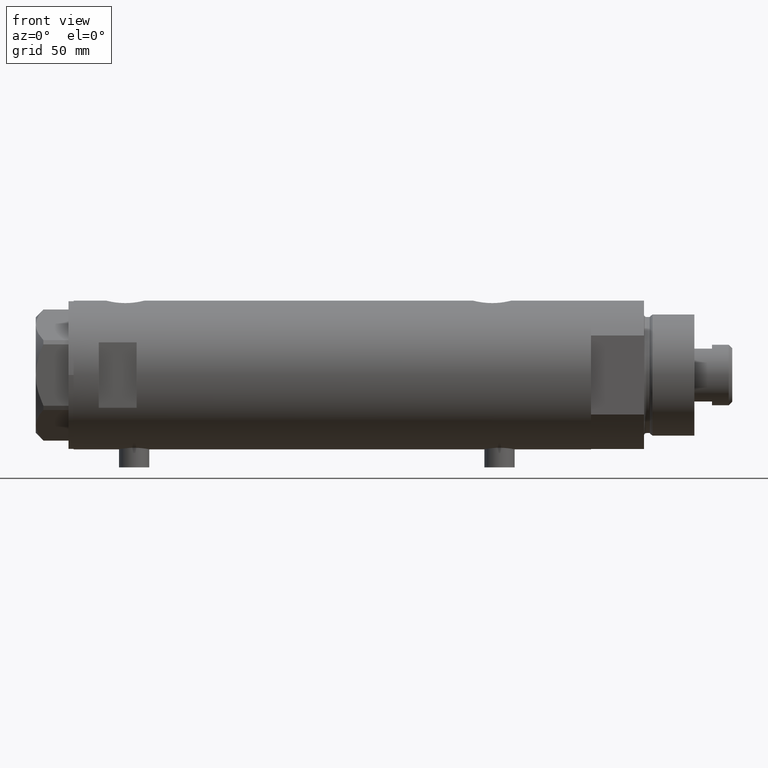
[diagram: clean part render]
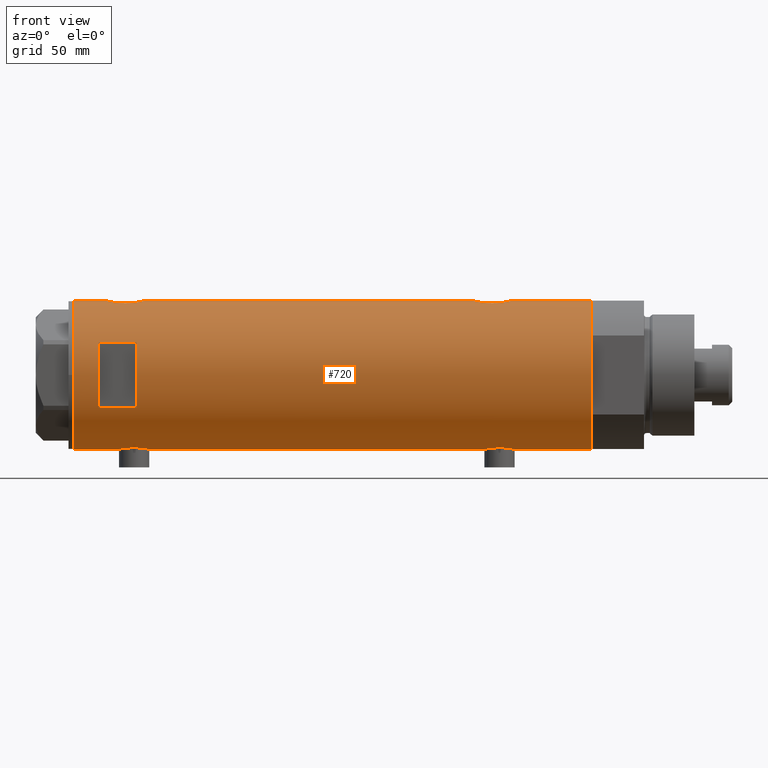
[diagram: same view with one face highlighted and labeled with its STEP entity id]
A machine part, front view. The second image highlights one B-rep face of the part: STEP entity #720.
In plain terms, the highlighted cylindrical surface (partial cylindrical patch) has radius 29.5 mm, axis along (-1, -0, 0).
Its self-contained STEP definition (entity closure, byte-faithful):
#6 = CARTESIAN_POINT ( 'NONE',  ( -29.38738983524999782, -2.582042051636495028, 72.90464828404618913 ) ) ;
#36 = CARTESIAN_POINT ( 'NONE',  ( -28.91427970886710597, -5.849862889315915915, 76.39006866871152113 ) ) ;
#82 = CARTESIAN_POINT ( 'NONE',  ( 28.77541267587656648, -6.504036106227646385, 85.86628550135911553 ) ) ;
#96 = CARTESIAN_POINT ( 'NONE',  ( 0.000000000000000000, 0.000000000000000000, -102.5999999999999943 ) ) ;
#103 = VECTOR ( 'NONE', #3602, 1000.000000000000000 ) ;
#111 = ORIENTED_EDGE ( 'NONE', *, *, #1349, .F. ) ;
#129 = VERTEX_POINT ( 'NONE', #2042 ) ;
#132 = CARTESIAN_POINT ( 'NONE',  ( 29.14531914445117877, -4.579221598645971447, 88.05990232992807876 ) ) ;
#144 = CARTESIAN_POINT ( 'NONE',  ( -29.45797511864982710, -1.625450914296657112, -72.34905127530043956 ) ) ;
#157 = CARTESIAN_POINT ( 'NONE',  ( 28.62986945670066774, -7.114680680403743018, 84.52393776006688597 ) ) ;
#169 = CARTESIAN_POINT ( 'NONE',  ( -29.12311479234994849, -4.702282052053745609, -62.17776471113518966 ) ) ;
#175 = VECTOR ( 'NONE', #3914, 1000.000000000000000 ) ;
#188 = CARTESIAN_POINT ( 'NONE',  ( 28.59279484545185923, -7.260293545345786193, -65.34406557984468122 ) ) ;
#208 = CARTESIAN_POINT ( 'NONE',  ( 28.95592074821772854, -5.641779806288306887, 77.15226504197966051 ) ) ;
#240 = EDGE_CURVE ( 'NONE', #609, #590, #2305, .T. ) ;
#242 = CARTESIAN_POINT ( 'NONE',  ( -29.33479068874800078, -3.136645782783869851, -60.87844745385528711 ) ) ;
#289 = CARTESIAN_POINT ( 'NONE',  ( -28.89828397447510966, -5.929977241120605314, 80.61611952241997869 ) ) ;
#298 = DIRECTION ( 'NONE',  ( 0.000000000000000000, 0.000000000000000000, 1.000000000000000000 ) ) ;
#312 = CARTESIAN_POINT ( 'NONE',  ( -29.21108587560690495, -4.128853169727745964, 73.89032723090410570 ) ) ;
#337 = CARTESIAN_POINT ( 'NONE',  ( -28.96147498926092112, -5.613273026676368183, 75.82107301657420351 ) ) ;
#364 = EDGE_CURVE ( 'NONE', #2247, #983, #951, .T. ) ;
#413 = CARTESIAN_POINT ( 'NONE',  ( -29.50000000000000355, -1.590035304987910071E-15, -60.04999999999999005 ) ) ;
#426 = CARTESIAN_POINT ( 'NONE',  ( 28.89374408016310269, -5.952042782108800445, 86.66984537025962254 ) ) ;
#435 = CARTESIAN_POINT ( 'NONE',  ( -29.50000000000000355, 3.612708057484692393E-15, -102.5999999999999943 ) ) ;
#470 = CARTESIAN_POINT ( 'NONE',  ( 28.53399451186754732, -7.487442594623194836, 82.59897485501112158 ) ) ;
#478 = FACE_OUTER_BOUND ( 'NONE', #3852, .T. ) ;
#481 = CARTESIAN_POINT ( 'NONE',  ( -29.25427426731712899, -3.815048240656443657, -71.26740768153337058 ) ) ;
#492 = LINE ( 'NONE', #2229, #103 ) ;
#493 = CARTESIAN_POINT ( 'NONE',  ( 29.31438578683261298, -3.335040812377227049, -70.13547276843773659 ) ) ;
#503 = CARTESIAN_POINT ( 'NONE',  ( -28.83028160285196506, -6.250189016175740520, -65.89032996785323348 ) ) ;
#516 = CARTESIAN_POINT ( 'NONE',  ( 28.62986945670067129, -7.114680680403742130, -60.97606223993307140 ) ) ;
#528 = LINE ( 'NONE', #1924, #4283 ) ;
#539 = DIRECTION ( 'NONE',  ( 0.000000000000000000, 0.000000000000000000, 1.000000000000000000 ) ) ;
#548 = CARTESIAN_POINT ( 'NONE',  ( 28.72151714661535138, -6.735173278284154463, -60.06359529429123256 ) ) ;
#558 = CARTESIAN_POINT ( 'NONE',  ( -28.83909499632369133, -6.209928350489664517, -65.48382218917039665 ) ) ;
#578 = CARTESIAN_POINT ( 'NONE',  ( -29.43130053621386821, -2.021711243143699654, -60.38244954039819845 ) ) ;
#590 = VERTEX_POINT ( 'NONE', #3547 ) ;
#601 = VECTOR ( 'NONE', #2892, 1000.000000000000000 ) ;
#609 = VERTEX_POINT ( 'NONE', #1884 ) ;
#631 = CARTESIAN_POINT ( 'NONE',  ( 29.05028789344173035, -5.134328181356801579, 76.62753542393731720 ) ) ;
#649 = CARTESIAN_POINT ( 'NONE',  ( -29.50000000000000711, -0.4084468586314294880, 72.34999999999999432 ) ) ;
#669 = EDGE_CURVE ( 'NONE', #2247, #3817, #3317, .T. ) ;
#671 = CARTESIAN_POINT ( 'NONE',  ( -29.43333839972900989, -2.017691896334575130, 72.67064010952158526 ) ) ;
#679 = ORIENTED_EDGE ( 'NONE', *, *, #3022, .F. ) ;
#695 = CARTESIAN_POINT ( 'NONE',  ( -29.12379578281188230, -4.705261494361423935, 74.46612042279726040 ) ) ;
#704 = DIRECTION ( 'NONE',  ( 0.000000000000000000, 0.000000000000000000, 1.000000000000000000 ) ) ;
#720 = ADVANCED_FACE ( 'NONE', ( #478, #2215 ), #3934, .T. ) ;
#742 = AXIS2_PLACEMENT_3D ( 'NONE', #2222, #3596, #1557 ) ;
#754 = CARTESIAN_POINT ( 'NONE',  ( -29.43333839972901345, -2.017691896334584012, -72.22935989047843464 ) ) ;
#765 = CARTESIAN_POINT ( 'NONE',  ( 29.48775985681159284, -0.9798361908152548594, 89.55230443881325186 ) ) ;
#790 = CARTESIAN_POINT ( 'NONE',  ( 29.50000000000000355, -2.245054425791785664E-15, 74.59999999999996589 ) ) ;
#797 = CARTESIAN_POINT ( 'NONE',  ( -29.49152014567324542, -0.8152473631539814969, -72.51035294833330624 ) ) ;
#824 = CARTESIAN_POINT ( 'NONE',  ( -29.50000000000000711, -0.4084468586314322081, -72.54999999999999716 ) ) ;
#825 = LINE ( 'NONE', #1527, #601 ) ;
#839 = CARTESIAN_POINT ( 'NONE',  ( 29.17410189149616428, -4.377709617224027738, -69.49475827476021550 ) ) ;
#848 = DIRECTION ( 'NONE',  ( 1.000000000000000000, 0.000000000000000000, 0.000000000000000000 ) ) ;
#850 = CARTESIAN_POINT ( 'NONE',  ( -28.99856997507318823, -5.420860550814443179, -69.43723012145801476 ) ) ;
#865 = CARTESIAN_POINT ( 'NONE',  ( 28.98816846638395717, -5.474212100855879726, -58.26747840116692601 ) ) ;
#867 = DIRECTION ( 'NONE',  ( 1.000000000000000000, 0.000000000000000000, 0.000000000000000000 ) ) ;
#871 = CARTESIAN_POINT ( 'NONE',  ( -29.46613381094001127, -1.427468570127966574, 84.68827540540398502 ) ) ;
#872 = CARTESIAN_POINT ( 'NONE',  ( -29.21016169868140722, -4.135295259288792380, -61.59609911913490521 ) ) ;
#913 = CARTESIAN_POINT ( 'NONE',  ( 28.95592074821772854, -5.641779806288295340, -68.34773495802029686 ) ) ;
#923 = CARTESIAN_POINT ( 'NONE',  ( -29.37136442049237672, -2.777615426151009537, -60.68634887377884013 ) ) ;
#935 = EDGE_CURVE ( 'NONE', #2394, #3659, #1830, .T. ) ;
#939 = CARTESIAN_POINT ( 'NONE',  ( 0.000000000000000000, 0.000000000000000000, 92.59999999999999432 ) ) ;
#947 = ORIENTED_EDGE ( 'NONE', *, *, #4422, .F. ) ;
#949 = CARTESIAN_POINT ( 'NONE',  ( 29.17410189149617139, -4.377709617224038396, 76.00524172523977029 ) ) ;
#951 = CIRCLE ( 'NONE', #1676, 29.50000000000000355 ) ;
#954 = CARTESIAN_POINT ( 'NONE',  ( 29.23250901027694937, -3.968959760999276831, -57.03153982712335335 ) ) ;
#959 = CARTESIAN_POINT ( 'NONE',  ( -29.50000000000000355, -1.590035304987910071E-15, -60.04999999999999005 ) ) ;
#983 = VERTEX_POINT ( 'NONE', #1709 ) ;
#1012 = CARTESIAN_POINT ( 'NONE',  ( -29.45797511864983420, -1.625450914296656002, 72.55094872469950928 ) ) ;
#1028 = B_SPLINE_CURVE_WITH_KNOTS ( 'NONE', 3,
 ( #3742, #649, #1720, #1012, #671, #6, #1390, #3404, #3122, #2413, #312, #695, #3062, #2086, #337, #36, #3454, #4461, #2739, #1073, #4116, #2427, #1417, #3819, #1034, #289, #2395, #2702, #3786, #4079, #3256, #1598, #1789, #1574, #2922, #1185, #3310, #2554, #3571, #871, #3147, #1097, #3590 ),
 .UNSPECIFIED., .F., .F.,
 ( 4, 2, 2, 2, 2, 2, 2, 2, 2, 1, 2, 2, 2, 2, 2, 2, 2, 2, 2, 2, 2, 4 ),
 ( 0.01959598605283711936, 0.02082041500883365093, 0.02204484396483017902, 0.02265705844282843440, 0.02326927292082669324, 0.02449370187682320399, 0.02571813083281971821, 0.02694255978881623242, 0.02755477426681450515, 0.02816698874481278481, 0.02877920322281105753, 0.02939141770080933719, 0.03061584665680588957, 0.03184027561280243501, 0.03306470456879899433, 0.03367691904679726705, 0.03428913352479553978, 0.03551356248079206440, 0.03673799143678858903, 0.03735020591478684787, 0.03796242039278510672, 0.03918684934878163828 ),
 .UNSPECIFIED. ) ;
#1034 = CARTESIAN_POINT ( 'NONE',  ( -28.87288655002252113, -6.050870399762838581, 80.21750540721806999 ) ) ;
#1036 = ORIENTED_EDGE ( 'NONE', *, *, #3792, .F. ) ;
#1073 = CARTESIAN_POINT ( 'NONE',  ( -28.84137202824162571, -6.198846007008988579, 77.77611738876129266 ) ) ;
#1083 = EDGE_CURVE ( 'NONE', #983, #3188, #3226, .T. ) ;
#1097 = CARTESIAN_POINT ( 'NONE',  ( -29.50000000000000000, -0.4141077724969869922, 84.84999999999999432 ) ) ;
#1114 = DIRECTION ( 'NONE',  ( 0.000000000000000000, 0.000000000000000000, 1.000000000000000000 ) ) ;
#1118 = CARTESIAN_POINT ( 'NONE',  ( -28.89999183068148270, -5.919812056825926483, -68.31500238835417349 ) ) ;
#1131 = CARTESIAN_POINT ( 'NONE',  ( 28.89374408016310269, -5.952042782108800445, -58.83015462974032062 ) ) ;
#1151 = CARTESIAN_POINT ( 'NONE',  ( 29.50000000000000355, -8.867907290838723877E-21, 89.59999999999998010 ) ) ;
#1174 = CARTESIAN_POINT ( 'NONE',  ( 28.62983003203745369, -7.114781472982449451, 79.67726941146258923 ) ) ;
#1185 = CARTESIAN_POINT ( 'NONE',  ( -29.37136442049237672, -2.777615426151010869, 84.21365112622117977 ) ) ;
#1198 = VERTEX_POINT ( 'NONE', #790 ) ;
#1199 = CARTESIAN_POINT ( 'NONE',  ( 28.86290657878786092, -6.099358034152096764, 77.72869329957393347 ) ) ;
#1231 = CARTESIAN_POINT ( 'NONE',  ( -29.08006251441183920, -4.961575945539737909, -62.49381497947477015 ) ) ;
#1244 = CARTESIAN_POINT ( 'NONE',  ( 28.53399451186755442, -7.487442594623195724, -62.90102514498884290 ) ) ;
#1271 = CARTESIAN_POINT ( 'NONE',  ( 29.08168479815708096, -4.954011967599733168, 76.46372631484730675 ) ) ;
#1311 = CARTESIAN_POINT ( 'NONE',  ( 29.43916859571211830, -1.954329820671505402, 74.84235520757910365 ) ) ;
#1349 = EDGE_CURVE ( 'NONE', #129, #3948, #1028, .T. ) ;
#1390 = CARTESIAN_POINT ( 'NONE',  ( -29.37055817176825201, -2.766456155496577196, 72.99186392411090196 ) ) ;
#1405 = CARTESIAN_POINT ( 'NONE',  ( -12.96148139681573319, -26.49999999999998934, 77.59999999999996589 ) ) ;
#1417 = CARTESIAN_POINT ( 'NONE',  ( -28.83028160285196151, -6.250189016175732526, 79.00967003214680062 ) ) ;
#1467 = VERTEX_POINT ( 'NONE', #1983 ) ;
#1469 = CARTESIAN_POINT ( 'NONE',  ( 28.59337635119608123, -7.258007499531553108, 84.05216225651358286 ) ) ;
#1490 = ORIENTED_EDGE ( 'NONE', *, *, #3811, .T. ) ;
#1496 = CARTESIAN_POINT ( 'NONE',  ( 28.54678862679668327, -7.438514536388042053, 83.08958274320788462 ) ) ;
#1518 = DIRECTION ( 'NONE',  ( 0.000000000000000000, 0.000000000000000000, 1.000000000000000000 ) ) ;
#1526 = CARTESIAN_POINT ( 'NONE',  ( -29.07948744859177381, -4.968520850090771823, -70.11336367378893897 ) ) ;
#1527 = CARTESIAN_POINT ( 'NONE',  ( -29.50000000000000355, 3.612708057484692393E-15, -102.5999999999999943 ) ) ;
#1557 = DIRECTION ( 'NONE',  ( 1.776356839400250267E-15, 1.000000000000000000, 4.704334850106595203E-15 ) ) ;
#1565 = ORIENTED_EDGE ( 'NONE', *, *, #2479, .F. ) ;
#1574 = CARTESIAN_POINT ( 'NONE',  ( -29.25361239466580798, -3.820294933898100709, 83.56357989714041423 ) ) ;
#1575 = CARTESIAN_POINT ( 'NONE',  ( -28.83260549167351527, -6.239494599049539403, -66.71615084301799925 ) ) ;
#1588 = CARTESIAN_POINT ( 'NONE',  ( 28.77424839213763619, -6.509286280845844708, -67.15781251605956470 ) ) ;
#1598 = CARTESIAN_POINT ( 'NONE',  ( -29.14490888978864191, -4.565669626908226419, 82.87298179876219706 ) ) ;
#1600 = CARTESIAN_POINT ( 'NONE',  ( -29.49128673965872949, -0.8227026017531592350, -60.09075558927906968 ) ) ;
#1635 = CARTESIAN_POINT ( 'NONE',  ( 29.31438578683259877, -3.335040812377236819, 75.36452723156224920 ) ) ;
#1636 = CARTESIAN_POINT ( 'NONE',  ( 28.59337635119607768, -7.258007499531554885, -61.44783774348636030 ) ) ;
#1647 = CARTESIAN_POINT ( 'NONE',  ( -29.05872136210575718, -5.084685578900231206, -62.65990008091243624 ) ) ;
#1676 = AXIS2_PLACEMENT_3D ( 'NONE', #3390, #298, #1684 ) ;
#1678 = VERTEX_POINT ( 'NONE', #4218 ) ;
#1684 = DIRECTION ( 'NONE',  ( 1.000000000000000000, 0.000000000000000000, 0.000000000000000000 ) ) ;
#1709 = CARTESIAN_POINT ( 'NONE',  ( 29.50000000000000355, 0.000000000000000000, -102.5999999999999943 ) ) ;
#1720 = CARTESIAN_POINT ( 'NONE',  ( -29.49152014567325253, -0.8152473631539810528, 72.38964705166668523 ) ) ;
#1764 = ORIENTED_EDGE ( 'NONE', *, *, #3352, .T. ) ;
#1789 = CARTESIAN_POINT ( 'NONE',  ( -29.21016169868140366, -4.135295259288786163, 83.30390088086510048 ) ) ;
#1804 = CARTESIAN_POINT ( 'NONE',  ( 29.26065241255351168, -3.756597382275448371, -56.90395565180807580 ) ) ;
#1827 = CARTESIAN_POINT ( 'NONE',  ( -29.31475612970062272, -3.305202271067065656, -71.60847868843855224 ) ) ;
#1830 = CIRCLE ( 'NONE', #4344, 29.50000000000000355 ) ;
#1842 = CARTESIAN_POINT ( 'NONE',  ( 29.33743940633121028, -3.100990836771693626, 88.93327512439064719 ) ) ;
#1861 = ORIENTED_EDGE ( 'NONE', *, *, #669, .F. ) ;
#1867 = CARTESIAN_POINT ( 'NONE',  ( 28.53070445389873200, -7.499926890973435789, 82.34953420512914590 ) ) ;
#1884 = CARTESIAN_POINT ( 'NONE',  ( -29.50000000000000355, 3.612708057484692393E-15, 102.5999999999999943 ) ) ;
#1888 = CARTESIAN_POINT ( 'NONE',  ( 29.43922820968271736, -1.954457150219037542, 89.35789347245771808 ) ) ;
#1899 = AXIS2_PLACEMENT_3D ( 'NONE', #3644, #4267, #848 ) ;
#1911 = CARTESIAN_POINT ( 'NONE',  ( 28.55627543367307553, -7.402134446380881805, -62.16780349681759787 ) ) ;
#1919 = CARTESIAN_POINT ( 'NONE',  ( 28.95619957017311563, -5.640369376407885049, -58.45060273509820092 ) ) ;
#1924 = CARTESIAN_POINT ( 'NONE',  ( 29.50000000000000355, 0.000000000000000000, -102.5999999999999943 ) ) ;
#1938 = CARTESIAN_POINT ( 'NONE',  ( 28.53064705443909332, -7.500145243772297299, -63.89244703291116423 ) ) ;
#1955 = EDGE_CURVE ( 'NONE', #3980, #129, #825, .T. ) ;
#1973 = CARTESIAN_POINT ( 'NONE',  ( 28.98740664105171660, -5.478212189394670695, 76.97180483814203455 ) ) ;
#1974 = CARTESIAN_POINT ( 'NONE',  ( 28.77541267587657714, -6.504036106227648162, -59.63371449864082052 ) ) ;
#1976 = VECTOR ( 'NONE', #1518, 1000.000000000000000 ) ;
#1983 = CARTESIAN_POINT ( 'NONE',  ( 29.50000000000000355, -8.867907290838723877E-21, 89.59999999999998010 ) ) ;
#1994 = B_SPLINE_CURVE_WITH_KNOTS ( 'NONE', 3,
 ( #1151, #3272, #765, #1888, #3898, #1842, #4181, #3201, #3875, #132, #2137, #2155, #3245, #426, #2511, #82, #3555, #157, #1469, #3526, #1496, #470, #1867, #3224, #2906, #2877, #1174, #2537, #4284, #1199, #2932, #208, #1973, #631, #1271, #4013, #949, #3005, #1635, #2276, #1311, #2641, #1997, #3673 ),
 .UNSPECIFIED., .F., .F.,
 ( 4, 2, 2, 2, 2, 2, 2, 2, 2, 2, 2, 2, 2, 2, 2, 2, 2, 2, 2, 2, 2, 4 ),
 ( 0.02354540741801909587, 0.02501659793198026879, 0.02648778844594144172, 0.02722338370292202298, 0.02795897895990260076, 0.02943016947386375981, 0.03016576473084434107, 0.03090135998782492233, 0.03237255050178604321, 0.03384374101574717103, 0.03457933627272773841, 0.03531493152970829885, 0.03678612204366942667, 0.03825731255763055449, 0.03972850307159167538, 0.04046409832857222888, 0.04119969358555276850, 0.04193528884253332201, 0.04267088409951386857, 0.04414207461347498251, 0.04561326512743610340, 0.04708445564139722428 ),
 .UNSPECIFIED. ) ;
#1997 = CARTESIAN_POINT ( 'NONE',  ( 29.50000000000000711, -0.4976091310423271241, 74.59999999999996589 ) ) ;
#2028 = B_SPLINE_CURVE_WITH_KNOTS ( 'NONE', 3,
 ( #2885, #4193, #2550, #3932, #2214, #3586, #3492, #1804, #954, #3252, #2576, #865, #1919, #1131, #2908, #1974, #548, #516, #1636, #1911, #2568, #1244, #2539, #1938, #4310, #188, #2956, #3303, #1588, #3006, #3990, #913, #4015, #3674, #4377, #3925, #839, #2206, #493, #3247, #4285, #3441, #2052, #3787 ),
 .UNSPECIFIED., .F., .F.,
 ( 4, 2, 2, 2, 2, 2, 2, 2, 2, 2, 2, 2, 2, 2, 2, 2, 2, 2, 2, 2, 2, 4 ),
 ( 0.02354540741801909587, 0.02501659793198023757, 0.02648778844594137927, 0.02722338370292194665, 0.02795897895990251403, 0.02943016947386364879, 0.03016576473084422311, 0.03090135998782480090, 0.03237255050178593219, 0.03384374101574706695, 0.03457933627272764820, 0.03531493152970824334, 0.03678612204366940586, 0.03825731255763055449, 0.03972850307159171007, 0.04046409832857227051, 0.04119969358555283095, 0.04193528884253339140, 0.04267088409951395184, 0.04414207461347504496, 0.04561326512743613809, 0.04708445564139723122 ),
 .UNSPECIFIED. ) ;
#2042 = CARTESIAN_POINT ( 'NONE',  ( -29.50000000000000355, 3.612706708236066082E-15, 72.34999999999999432 ) ) ;
#2046 = EDGE_LOOP ( 'NONE', ( #3879, #1565, #3532, #679 ) ) ;
#2052 = CARTESIAN_POINT ( 'NONE',  ( 29.49999999999999645, -0.4976091310423233494, -70.89999999999997726 ) ) ;
#2057 = VERTEX_POINT ( 'NONE', #2468 ) ;
#2086 = CARTESIAN_POINT ( 'NONE',  ( -28.99856997507319534, -5.420860550814436074, 75.46276987854201934 ) ) ;
#2137 = CARTESIAN_POINT ( 'NONE',  ( 29.08294968506024247, -4.955368226349214034, 87.75096718198464885 ) ) ;
#2146 = CARTESIAN_POINT ( 'NONE',  ( -29.50000000000000355, 3.612706708267620518E-15, -72.54999999999999716 ) ) ;
#2155 = CARTESIAN_POINT ( 'NONE',  ( 28.98816846638396427, -5.474212100855884167, 87.23252159883304557 ) ) ;
#2162 = CARTESIAN_POINT ( 'NONE',  ( -29.50000000000000355, -5.649958391113855330E-16, 84.85000000000000853 ) ) ;
#2165 = CARTESIAN_POINT ( 'NONE',  ( -28.85437274499025406, -6.138402965889072860, -67.52756596705081904 ) ) ;
#2193 = CARTESIAN_POINT ( 'NONE',  ( -29.37055817176824846, -2.766456155496580305, -71.90813607588914635 ) ) ;
#2206 = CARTESIAN_POINT ( 'NONE',  ( 29.26166309680877831, -3.765013078516706635, -69.90510232053063078 ) ) ;
#2214 = CARTESIAN_POINT ( 'NONE',  ( 29.40378957563274653, -2.423455993307770395, -56.28550539884012949 ) ) ;
#2215 = FACE_BOUND ( 'NONE', #2046, .T. ) ;
#2218 = DIRECTION ( 'NONE',  ( 0.000000000000000000, 0.000000000000000000, 1.000000000000000000 ) ) ;
#2221 = ORIENTED_EDGE ( 'NONE', *, *, #1083, .T. ) ;
#2222 = CARTESIAN_POINT ( 'NONE',  ( 0.000000000000000000, 0.000000000000000000, 77.60000000000007958 ) ) ;
#2229 = CARTESIAN_POINT ( 'NONE',  ( 29.50000000000000355, 0.000000000000000000, -102.5999999999999943 ) ) ;
#2240 = CARTESIAN_POINT ( 'NONE',  ( -29.41741605749266952, -2.213861184585006914, -60.45168825548628888 ) ) ;
#2247 = VERTEX_POINT ( 'NONE', #4338 ) ;
#2276 = CARTESIAN_POINT ( 'NONE',  ( 29.40305664607912917, -2.432276947006154710, 74.98852198993408535 ) ) ;
#2283 = CARTESIAN_POINT ( 'NONE',  ( -29.50000000000000355, -0.4141077724969879359, -60.04999999999999005 ) ) ;
#2305 = CIRCLE ( 'NONE', #1899, 29.50000000000000355 ) ;
#2308 = AXIS2_PLACEMENT_3D ( 'NONE', #96, #1114, #3587 ) ;
#2394 = VERTEX_POINT ( 'NONE', #3648 ) ;
#2395 = CARTESIAN_POINT ( 'NONE',  ( -28.96072448608914129, -5.617106371651694019, 81.37082731660440515 ) ) ;
#2413 = CARTESIAN_POINT ( 'NONE',  ( -29.25427426731712188, -3.815048240656433887, 73.63259231846663511 ) ) ;
#2427 = CARTESIAN_POINT ( 'NONE',  ( -28.83034328164762172, -6.249904501012241376, 78.39085460435941854 ) ) ;
#2448 = CARTESIAN_POINT ( 'NONE',  ( -29.12379578281188230, -4.705261494361433705, -70.43387957720274528 ) ) ;
#2468 = CARTESIAN_POINT ( 'NONE',  ( 29.50000000000000355, -8.867907290838723877E-21, -55.89999999999997016 ) ) ;
#2479 = EDGE_CURVE ( 'NONE', #3659, #3019, #4351, .T. ) ;
#2511 = CARTESIAN_POINT ( 'NONE',  ( 28.86327882047615390, -6.097569254709699571, 86.47367090911447463 ) ) ;
#2537 = CARTESIAN_POINT ( 'NONE',  ( 28.72051071455670979, -6.739402597165495834, 78.77281026296242317 ) ) ;
#2539 = CARTESIAN_POINT ( 'NONE',  ( 28.53070445389874266, -7.499926890973439342, -63.15046579487081146 ) ) ;
#2541 = EDGE_CURVE ( 'NONE', #3019, #1678, #2689, .T. ) ;
#2550 = CARTESIAN_POINT ( 'NONE',  ( 29.48775985681159639, -0.9798361908152574129, -55.94769556118672682 ) ) ;
#2554 = CARTESIAN_POINT ( 'NONE',  ( -29.43130053621386111, -2.021711243143688108, 84.51755045960183566 ) ) ;
#2555 = CARTESIAN_POINT ( 'NONE',  ( -29.33428005013168871, -3.127775714777726979, -71.71493203872593369 ) ) ;
#2568 = CARTESIAN_POINT ( 'NONE',  ( 28.54678862679669038, -7.438514536388041165, -62.41041725679207985 ) ) ;
#2576 = CARTESIAN_POINT ( 'NONE',  ( 29.08294968506023181, -4.955368226349209593, -57.74903281801530142 ) ) ;
#2601 = CARTESIAN_POINT ( 'NONE',  ( -29.46613381094002193, -1.427468570127975456, -60.21172459459602777 ) ) ;
#2612 = ORIENTED_EDGE ( 'NONE', *, *, #240, .F. ) ;
#2641 = CARTESIAN_POINT ( 'NONE',  ( 29.48742104091791205, -0.9879539515379935910, 74.64904301646019746 ) ) ;
#2649 = CARTESIAN_POINT ( 'NONE',  ( -28.83034328164762528, -6.249904501012249369, -66.50914539564061556 ) ) ;
#2665 = CARTESIAN_POINT ( 'NONE',  ( -28.87288655002252113, -6.050870399762843910, -64.68249459278192148 ) ) ;
#2689 = CIRCLE ( 'NONE', #742, 29.50000000000000355 ) ;
#2702 = CARTESIAN_POINT ( 'NONE',  ( -28.99772237063717739, -5.425436006677727185, 81.72962674552640294 ) ) ;
#2739 = CARTESIAN_POINT ( 'NONE',  ( -28.85437274499025406, -6.138402965889066643, 77.37243403294918664 ) ) ;
#2770 = B_SPLINE_CURVE_WITH_KNOTS ( 'NONE', 3,
 ( #2146, #824, #797, #144, #754, #3514, #2193, #2555, #1827, #481, #3235, #2448, #1526, #850, #3496, #3140, #1118, #3185, #2165, #3591, #1575, #2649, #503, #558, #2665, #2968, #4370, #4042, #1647, #1231, #169, #3332, #872, #2923, #242, #923, #2240, #578, #4297, #2601, #1600, #2283, #959 ),
 .UNSPECIFIED., .F., .F.,
 ( 4, 2, 2, 2, 2, 2, 2, 2, 2, 1, 2, 2, 2, 2, 2, 2, 2, 2, 2, 2, 2, 4 ),
 ( 0.01959598605283713324, 0.02082041500883367521, 0.02204484396483021719, 0.02265705844282847950, 0.02326927292082674181, 0.02449370187682326991, 0.02571813083281979800, 0.02694255978881632610, 0.02755477426681458841, 0.02816698874481285420, 0.02877920322281111998, 0.02939141770080938229, 0.03061584665680591039, 0.03184027561280243501, 0.03306470456879896658, 0.03367691904679723236, 0.03428913352479549814, 0.03551356248079203665, 0.03673799143678857515, 0.03735020591478684787, 0.03796242039278512059, 0.03918684934878166604 ),
 .UNSPECIFIED. ) ;
#2858 = CARTESIAN_POINT ( 'NONE',  ( 29.50000000000000355, 0.000000000000000000, -102.5999999999999943 ) ) ;
#2877 = CARTESIAN_POINT ( 'NONE',  ( 28.59279484545186989, -7.260293545345781752, 80.15593442015527614 ) ) ;
#2885 = CARTESIAN_POINT ( 'NONE',  ( 29.50000000000000355, -8.867907290838723877E-21, -55.89999999999997016 ) ) ;
#2892 = DIRECTION ( 'NONE',  ( 0.000000000000000000, 0.000000000000000000, 1.000000000000000000 ) ) ;
#2906 = CARTESIAN_POINT ( 'NONE',  ( 28.54347630091233512, -7.451827970232800524, 81.11943218216039497 ) ) ;
#2908 = CARTESIAN_POINT ( 'NONE',  ( 28.86327882047614679, -6.097569254709699571, -59.02632909088548985 ) ) ;
#2922 = CARTESIAN_POINT ( 'NONE',  ( -29.33479068874800078, -3.136645782783863190, 84.02155254614470437 ) ) ;
#2923 = CARTESIAN_POINT ( 'NONE',  ( -29.25361239466581864, -3.820294933898108258, -61.33642010285960566 ) ) ;
#2932 = CARTESIAN_POINT ( 'NONE',  ( 28.89374847711160754, -5.952001739005070569, 77.53016018920365582 ) ) ;
#2956 = CARTESIAN_POINT ( 'NONE',  ( 28.62983003203745014, -7.114781472982452115, -65.82273058853736813 ) ) ;
#2968 = CARTESIAN_POINT ( 'NONE',  ( -28.89828397447510966, -5.929977241120613307, -64.28388047758002699 ) ) ;
#2999 = VECTOR ( 'NONE', #2218, 1000.000000000000000 ) ;
#3005 = CARTESIAN_POINT ( 'NONE',  ( 29.26166309680877475, -3.765013078516723066, 75.59489767946935501 ) ) ;
#3006 = CARTESIAN_POINT ( 'NONE',  ( 28.86290657878785026, -6.099358034152094099, -67.77130670042603811 ) ) ;
#3019 = VERTEX_POINT ( 'NONE', #1405 ) ;
#3022 = EDGE_CURVE ( 'NONE', #1678, #2394, #3088, .T. ) ;
#3062 = CARTESIAN_POINT ( 'NONE',  ( -29.07948744859177381, -4.968520850090764718, 74.78663632621106672 ) ) ;
#3088 = LINE ( 'NONE', #3108, #3473 ) ;
#3108 = CARTESIAN_POINT ( 'NONE',  ( 12.96148139681573319, -26.49999999999999645, -102.5999999999999943 ) ) ;
#3122 = CARTESIAN_POINT ( 'NONE',  ( -29.31475612970062627, -3.305202271067055442, 73.29152131156146766 ) ) ;
#3140 = CARTESIAN_POINT ( 'NONE',  ( -28.91427970886710597, -5.849862889315917691, -68.50993133128852719 ) ) ;
#3147 = CARTESIAN_POINT ( 'NONE',  ( -29.49128673965872238, -0.8227026017531463564, 84.80924441072095021 ) ) ;
#3153 = ORIENTED_EDGE ( 'NONE', *, *, #364, .T. ) ;
#3185 = CARTESIAN_POINT ( 'NONE',  ( -28.87532468301956357, -6.038983942005360817, -67.92329367688532216 ) ) ;
#3188 = VERTEX_POINT ( 'NONE', #3563 ) ;
#3201 = CARTESIAN_POINT ( 'NONE',  ( 29.26065241255351523, -3.756597382275449704, 88.59604434819190999 ) ) ;
#3223 = ORIENTED_EDGE ( 'NONE', *, *, #1955, .F. ) ;
#3224 = CARTESIAN_POINT ( 'NONE',  ( 28.53064705443909688, -7.500145243772297299, 81.60755296708880735 ) ) ;
#3226 = LINE ( 'NONE', #2858, #1976 ) ;
#3235 = CARTESIAN_POINT ( 'NONE',  ( -29.21108587560690495, -4.128853169727751293, -71.00967276909594261 ) ) ;
#3245 = CARTESIAN_POINT ( 'NONE',  ( 28.95619957017310853, -5.640369376407885937, 87.04939726490175644 ) ) ;
#3247 = CARTESIAN_POINT ( 'NONE',  ( 29.40305664607911851, -2.432276947006143164, -70.51147801006587201 ) ) ;
#3252 = CARTESIAN_POINT ( 'NONE',  ( 29.14531914445116811, -4.579221598645975000, -57.44009767007188572 ) ) ;
#3256 = CARTESIAN_POINT ( 'NONE',  ( -29.12311479234995915, -4.702282052053731398, 82.72223528886483734 ) ) ;
#3272 = CARTESIAN_POINT ( 'NONE',  ( 29.50000000000000355, -0.4905639552620948418, 89.59999999999996589 ) ) ;
#3293 = CARTESIAN_POINT ( 'NONE',  ( -29.50000000000000355, 3.612706708267620518E-15, -72.54999999999999716 ) ) ;
#3303 = CARTESIAN_POINT ( 'NONE',  ( 28.72051071455670623, -6.739402597165503828, -66.72718973703749157 ) ) ;
#3310 = CARTESIAN_POINT ( 'NONE',  ( -29.41741605749267308, -2.213861184585004249, 84.44831174451374523 ) ) ;
#3317 = LINE ( 'NONE', #3623, #4115 ) ;
#3332 = CARTESIAN_POINT ( 'NONE',  ( -29.14490888978863481, -4.565669626908231749, -62.02701820123785126 ) ) ;
#3352 = EDGE_CURVE ( 'NONE', #1467, #590, #492, .T. ) ;
#3373 = EDGE_CURVE ( 'NONE', #1467, #1198, #1994, .T. ) ;
#3390 = CARTESIAN_POINT ( 'NONE',  ( 0.000000000000000000, 0.000000000000000000, -102.5999999999999943 ) ) ;
#3404 = CARTESIAN_POINT ( 'NONE',  ( -29.33428005013168871, -3.127775714777721650, 73.18506796127408620 ) ) ;
#3441 = CARTESIAN_POINT ( 'NONE',  ( 29.48742104091792271, -0.9879539515379904824, -70.85095698353975990 ) ) ;
#3454 = CARTESIAN_POINT ( 'NONE',  ( -28.89999183068148270, -5.919812056825920266, 76.58499761164586062 ) ) ;
#3473 = VECTOR ( 'NONE', #704, 1000.000000000000000 ) ;
#3492 = CARTESIAN_POINT ( 'NONE',  ( 29.31311917412634926, -3.322476152549155071, -56.67157014735702347 ) ) ;
#3496 = CARTESIAN_POINT ( 'NONE',  ( -28.96147498926091401, -5.613273026676368183, -69.07892698342581639 ) ) ;
#3514 = CARTESIAN_POINT ( 'NONE',  ( -29.38738983524999782, -2.582042051636505686, -71.99535171595380234 ) ) ;
#3525 = ORIENTED_EDGE ( 'NONE', *, *, #3734, .F. ) ;
#3526 = CARTESIAN_POINT ( 'NONE',  ( 28.55627543367307553, -7.402134446380880917, 83.33219650318234528 ) ) ;
#3532 = ORIENTED_EDGE ( 'NONE', *, *, #935, .F. ) ;
#3547 = CARTESIAN_POINT ( 'NONE',  ( 29.50000000000000355, 0.000000000000000000, 102.5999999999999943 ) ) ;
#3555 = CARTESIAN_POINT ( 'NONE',  ( 28.72151714661535848, -6.735173278284159792, 85.43640470570878165 ) ) ;
#3563 = CARTESIAN_POINT ( 'NONE',  ( 29.50000000000000355, -1.919926123348039602E-15, -70.89999999999999147 ) ) ;
#3571 = CARTESIAN_POINT ( 'NONE',  ( -29.45566469296797507, -1.628675872921092616, 84.63756032628675996 ) ) ;
#3586 = CARTESIAN_POINT ( 'NONE',  ( 29.33743940633121028, -3.100990836771692738, -56.56672487560931728 ) ) ;
#3587 = DIRECTION ( 'NONE',  ( 1.000000000000000000, 0.000000000000000000, 0.000000000000000000 ) ) ;
#3590 = CARTESIAN_POINT ( 'NONE',  ( -29.50000000000000355, -5.649958391113855330E-16, 84.85000000000000853 ) ) ;
#3591 = CARTESIAN_POINT ( 'NONE',  ( -28.84137202824162571, -6.198846007008994796, -67.12388261123875566 ) ) ;
#3596 = DIRECTION ( 'NONE',  ( -0.000000000000000000, -4.625929269271487689E-15, 1.000000000000000000 ) ) ;
#3602 = DIRECTION ( 'NONE',  ( 0.000000000000000000, 0.000000000000000000, 1.000000000000000000 ) ) ;
#3623 = CARTESIAN_POINT ( 'NONE',  ( -29.50000000000000355, 3.612708057484692393E-15, -102.5999999999999943 ) ) ;
#3644 = CARTESIAN_POINT ( 'NONE',  ( 0.000000000000000000, 0.000000000000000000, 102.5999999999999943 ) ) ;
#3648 = CARTESIAN_POINT ( 'NONE',  ( 12.96148139681573319, -26.49999999999998934, 92.59999999999999432 ) ) ;
#3659 = VERTEX_POINT ( 'NONE', #4278 ) ;
#3673 = CARTESIAN_POINT ( 'NONE',  ( 29.50000000000000355, -2.245054425791785664E-15, 74.59999999999996589 ) ) ;
#3674 = CARTESIAN_POINT ( 'NONE',  ( 29.05028789344173035, -5.134328181356800691, -68.87246457606266858 ) ) ;
#3734 = EDGE_CURVE ( 'NONE', #3948, #609, #4269, .T. ) ;
#3742 = CARTESIAN_POINT ( 'NONE',  ( -29.50000000000000355, 3.612706708236066082E-15, 72.34999999999999432 ) ) ;
#3786 = CARTESIAN_POINT ( 'NONE',  ( -29.05872136210575007, -5.084685578900221437, 82.24009991908759787 ) ) ;
#3787 = CARTESIAN_POINT ( 'NONE',  ( 29.50000000000000355, -1.919926123348039602E-15, -70.89999999999999147 ) ) ;
#3792 = EDGE_CURVE ( 'NONE', #3817, #3980, #2770, .T. ) ;
#3811 = EDGE_CURVE ( 'NONE', #2057, #1198, #528, .T. ) ;
#3817 = VERTEX_POINT ( 'NONE', #3293 ) ;
#3819 = CARTESIAN_POINT ( 'NONE',  ( -28.83909499632370199, -6.209928350489659188, 79.41617781082962324 ) ) ;
#3852 = EDGE_LOOP ( 'NONE', ( #1861, #3153, #2221, #947, #1490, #3896, #1764, #2612, #3525, #111, #3223, #1036 ) ) ;
#3875 = CARTESIAN_POINT ( 'NONE',  ( 29.23250901027694937, -3.968959760999270614, 88.46846017287658981 ) ) ;
#3879 = ORIENTED_EDGE ( 'NONE', *, *, #2541, .F. ) ;
#3896 = ORIENTED_EDGE ( 'NONE', *, *, #3373, .F. ) ;
#3898 = CARTESIAN_POINT ( 'NONE',  ( 29.40378957563274653, -2.423455993307769507, 89.21449460115985630 ) ) ;
#3914 = DIRECTION ( 'NONE',  ( -0.000000000000000000, -0.000000000000000000, -1.000000000000000000 ) ) ;
#3925 = CARTESIAN_POINT ( 'NONE',  ( 29.14351131874355971, -4.576283785862469422, -69.34705324848518160 ) ) ;
#3932 = CARTESIAN_POINT ( 'NONE',  ( 29.43922820968271381, -1.954457150219040429, -56.14210652754223219 ) ) ;
#3934 = CYLINDRICAL_SURFACE ( 'NONE', #2308, 29.50000000000000355 ) ;
#3948 = VERTEX_POINT ( 'NONE', #2162 ) ;
#3979 = CARTESIAN_POINT ( 'NONE',  ( -12.96148139681573319, -26.49999999999999645, -102.5999999999999943 ) ) ;
#3980 = VERTEX_POINT ( 'NONE', #413 ) ;
#3990 = CARTESIAN_POINT ( 'NONE',  ( 28.89374847711160754, -5.952001739005060799, -67.96983981079635839 ) ) ;
#4013 = CARTESIAN_POINT ( 'NONE',  ( 29.14351131874356682, -4.576283785862482745, 76.15294675151480419 ) ) ;
#4015 = CARTESIAN_POINT ( 'NONE',  ( 28.98740664105172016, -5.478212189394670695, -68.52819516185790860 ) ) ;
#4042 = CARTESIAN_POINT ( 'NONE',  ( -28.99772237063719160, -5.425436006677736955, -63.17037325447360985 ) ) ;
#4079 = CARTESIAN_POINT ( 'NONE',  ( -29.08006251441182854, -4.961575945539721921, 82.40618502052524263 ) ) ;
#4115 = VECTOR ( 'NONE', #539, 1000.000000000000000 ) ;
#4116 = CARTESIAN_POINT ( 'NONE',  ( -28.83260549167351527, -6.239494599049529633, 78.18384915698197801 ) ) ;
#4181 = CARTESIAN_POINT ( 'NONE',  ( 29.31311917412635992, -3.322476152549159067, 88.82842985264295521 ) ) ;
#4193 = CARTESIAN_POINT ( 'NONE',  ( 29.50000000000000355, -0.4905639552620941202, -55.89999999999995595 ) ) ;
#4218 = CARTESIAN_POINT ( 'NONE',  ( 12.96148139681573319, -26.49999999999998934, 77.59999999999996589 ) ) ;
#4267 = DIRECTION ( 'NONE',  ( 0.000000000000000000, 0.000000000000000000, 1.000000000000000000 ) ) ;
#4269 = LINE ( 'NONE', #435, #2999 ) ;
#4278 = CARTESIAN_POINT ( 'NONE',  ( -12.96148139681573319, -26.49999999999998934, 92.59999999999999432 ) ) ;
#4283 = VECTOR ( 'NONE', #4385, 1000.000000000000000 ) ;
#4284 = CARTESIAN_POINT ( 'NONE',  ( 28.77424839213763264, -6.509286280845844708, 78.34218748394037846 ) ) ;
#4285 = CARTESIAN_POINT ( 'NONE',  ( 29.43916859571211120, -1.954329820671502516, -70.65764479242088214 ) ) ;
#4294 = DIRECTION ( 'NONE',  ( -0.000000000000000000, 0.000000000000000000, -1.000000000000000000 ) ) ;
#4297 = CARTESIAN_POINT ( 'NONE',  ( -29.45566469296798928, -1.628675872921106160, -60.26243967371323862 ) ) ;
#4310 = CARTESIAN_POINT ( 'NONE',  ( 28.54347630091233512, -7.451827970232803189, -64.38056781783956239 ) ) ;
#4338 = CARTESIAN_POINT ( 'NONE',  ( -29.50000000000000355, 3.612708057484692393E-15, -102.5999999999999943 ) ) ;
#4344 = AXIS2_PLACEMENT_3D ( 'NONE', #939, #4294, #867 ) ;
#4351 = LINE ( 'NONE', #3979, #175 ) ;
#4370 = CARTESIAN_POINT ( 'NONE',  ( -28.96072448608915195, -5.617106371651702013, -63.52917268339557211 ) ) ;
#4377 = CARTESIAN_POINT ( 'NONE',  ( 29.08168479815707386, -4.954011967599724287, -69.03627368515267904 ) ) ;
#4385 = DIRECTION ( 'NONE',  ( 0.000000000000000000, 0.000000000000000000, 1.000000000000000000 ) ) ;
#4422 = EDGE_CURVE ( 'NONE', #2057, #3188, #2028, .T. ) ;
#4461 = CARTESIAN_POINT ( 'NONE',  ( -28.87532468301956712, -6.038983942005353711, 76.97670632311465511 ) ) ;